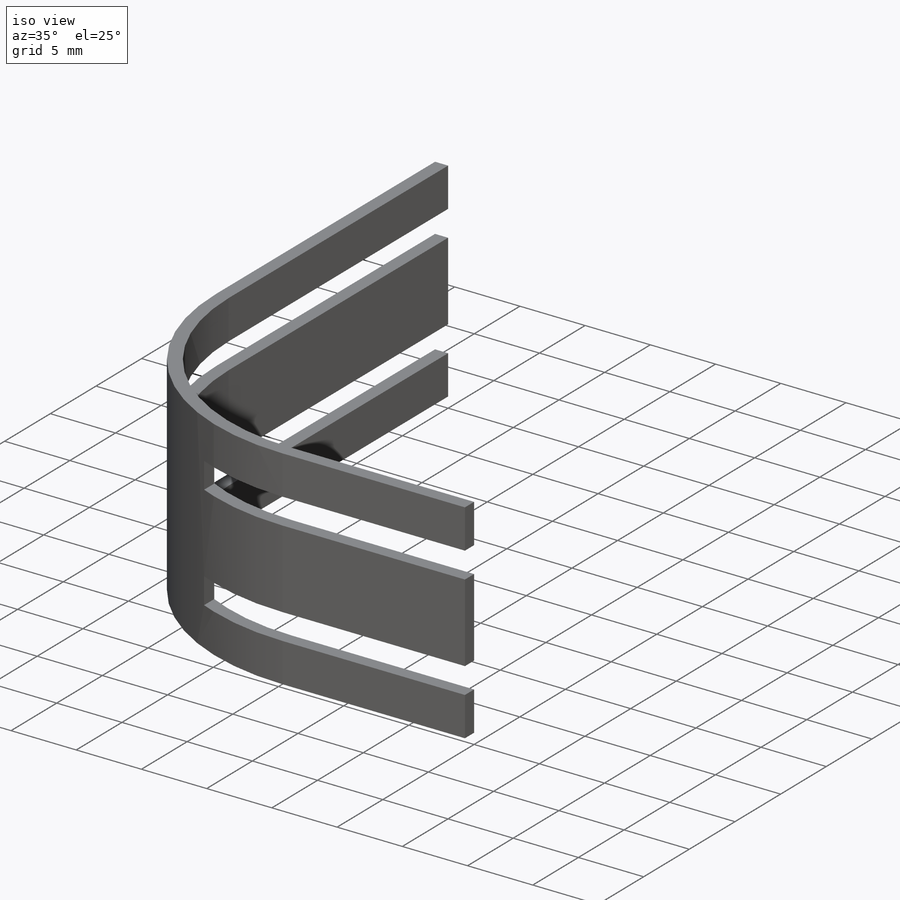
[diagram: iso view]
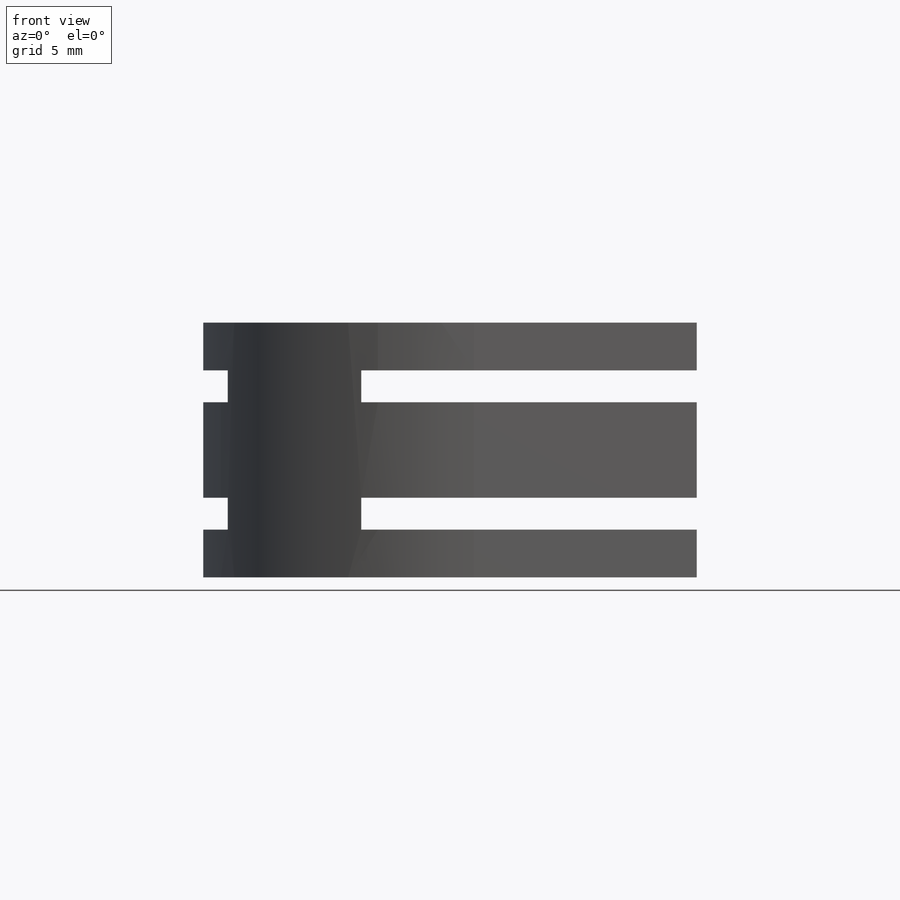
[diagram: front view]
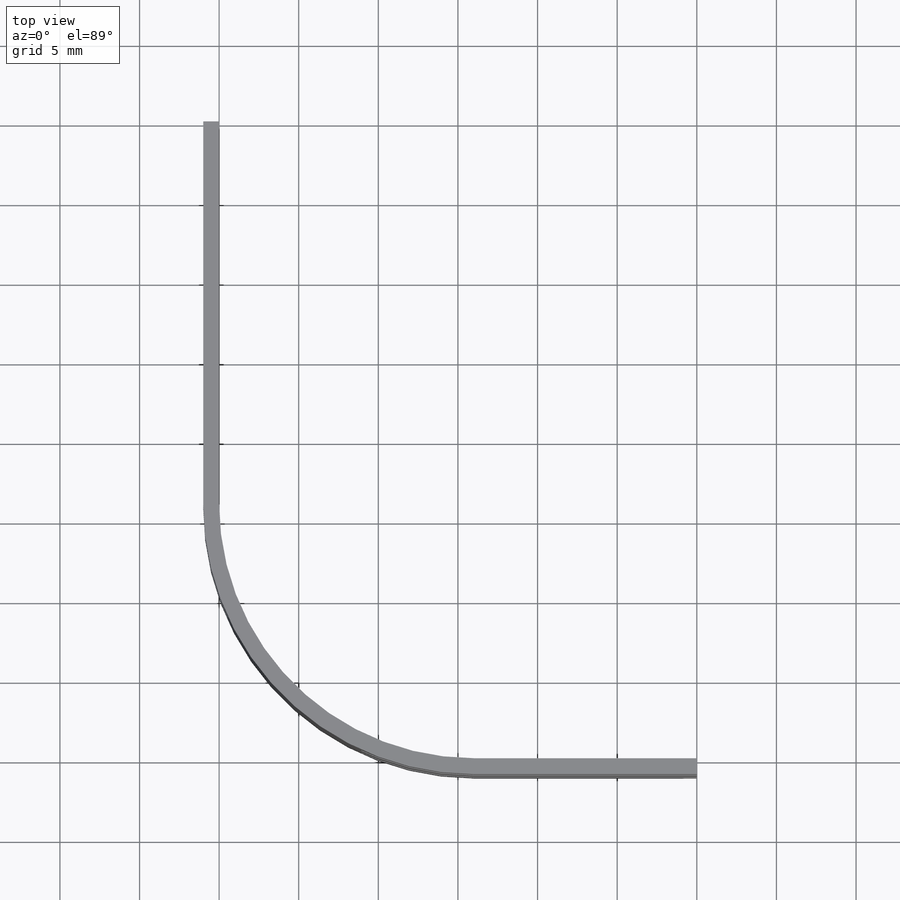
[diagram: top view]
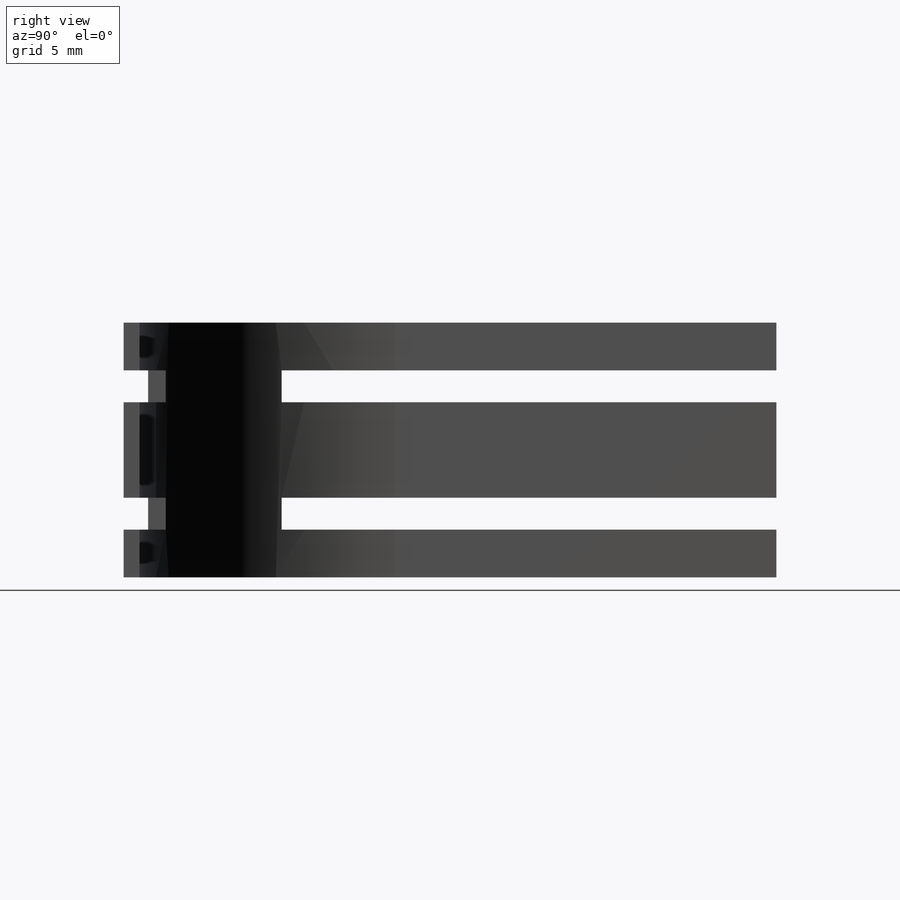
[diagram: right view]
SOLIDWORKS PART (.sldprt)
format: sldprt  version: not decoded by parser v0  size: 292,864 bytes
history: native  units: mm
features: sketch x5, extrude x5, material x1 (+15 scaffold rows collapsed)
feature tree (26):
  scaffold x15  (default folders/planes/origin — collapsed)
  material  "Material <not specified>"
  sketch  "Sketch1"  dims[D7=16.0mm D8=17.0mm D1=30.0mm D2=40.0mm D3=20.0mm D4=15.0mm D5=1.0mm D6=1.0mm]
  extrude  "Extrude1"  Depth=6mm
  sketch  "Sketch2"  dims[D1=8.925mm D2=8.925mm]
  extrude  "Extrude2"  Depth=2mm
  sketch  "Sketch3"  dims[D1=8.925mm D2=8.925mm]
  extrude  "Extrude3"  Depth=2mm
  sketch  "Sketch4"
  extrude  "Extrude4"  Depth=3mm
  sketch  "Sketch5"
  extrude  "Extrude5"  Depth=3mm
decode coverage: 8 of 10 modeling features carry decoded parameters
note: suppression state not decoded; provenance and decode notes live in map.json
